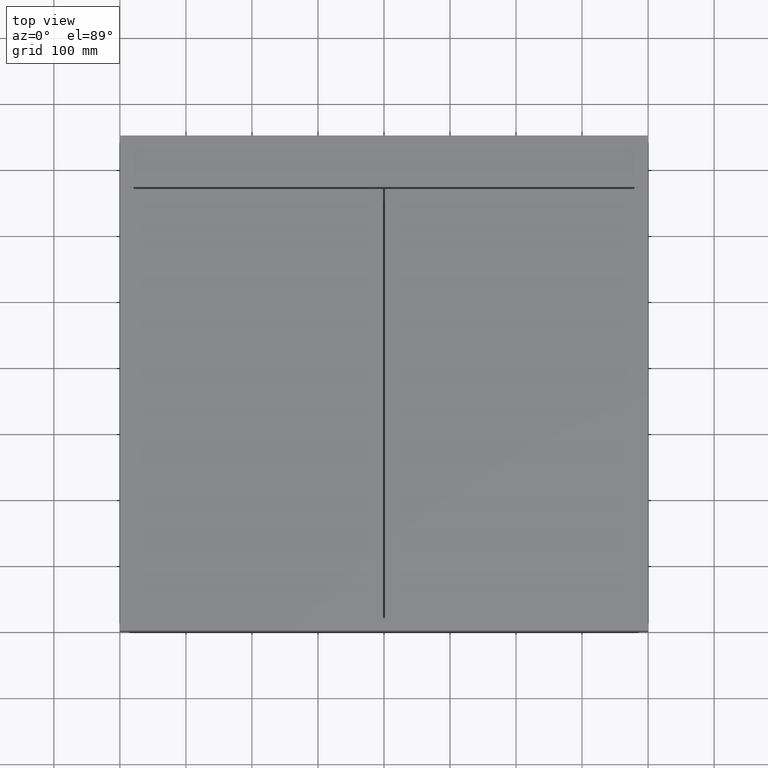
[diagram: clean part render]
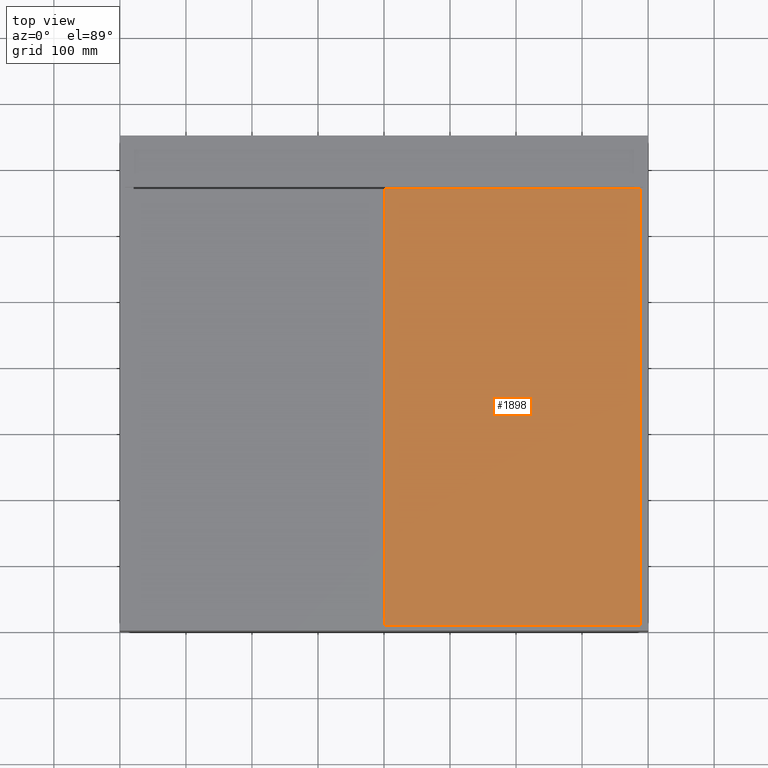
[diagram: same view with one face highlighted and labeled with its STEP entity id]
A machine part, top view. The second image highlights one B-rep face of the part: STEP entity #1898.
In plain terms, the highlighted planar face has unit normal (0, -0, 1).
Its self-contained STEP definition (entity closure, byte-faithful):
#15 = CARTESIAN_POINT ( 'NONE',  ( 401.4999999999999432, 668.9999000000001388, -7.806255641895631925E-14 ) ) ;
#406 = FACE_OUTER_BOUND ( 'NONE', #2019, .T. ) ;
#515 = ORIENTED_EDGE ( 'NONE', *, *, #2984, .T. ) ;
#970 = LINE ( 'NONE', #4577, #8707 ) ;
#1587 = EDGE_CURVE ( 'NONE', #10225, #8667, #7912, .T. ) ;
#1898 = ADVANCED_FACE ( 'NONE', ( #406 ), #4018, .T. ) ;
#2019 = EDGE_LOOP ( 'NONE', ( #5153, #2943, #6258, #515 ) ) ;
#2090 = EDGE_CURVE ( 'NONE', #7468, #10232, #4367, .T. ) ;
#2943 = ORIENTED_EDGE ( 'NONE', *, *, #5839, .T. ) ;
#2984 = EDGE_CURVE ( 'NONE', #8667, #7468, #8106, .T. ) ;
#3117 = DIRECTION ( 'NONE',  ( 1.000000000000000000, 2.047591133053501180E-36, 0.0000000000000000000 ) ) ;
#3202 = CARTESIAN_POINT ( 'NONE',  ( 789.0000000000001137, 8.000000000000007105, -7.806255641895631925E-14 ) ) ;
#3427 = DIRECTION ( 'NONE',  ( -1.679611486514833642E-16, 1.000000000000000000, 0.0000000000000000000 ) ) ;
#3620 = DIRECTION ( 'NONE',  ( -1.000000000000000000, -2.047591133053501180E-36, 0.0000000000000000000 ) ) ;
#3932 = VECTOR ( 'NONE', #3620, 1000.000000000000000 ) ;
#4018 = PLANE ( 'NONE',  #4701 ) ;
#4367 = LINE ( 'NONE', #7955, #4886 ) ;
#4577 = CARTESIAN_POINT ( 'NONE',  ( 401.5000000000000568, 8.000000000000007105, -7.806255641895631925E-14 ) ) ;
#4701 = AXIS2_PLACEMENT_3D ( 'NONE', #7601, #11221, #3117 ) ;
#4775 = CARTESIAN_POINT ( 'NONE',  ( 401.4999999999999432, 668.9999000000001388, -7.806255641895631925E-14 ) ) ;
#4886 = VECTOR ( 'NONE', #11570, 1000.000000000000000 ) ;
#5153 = ORIENTED_EDGE ( 'NONE', *, *, #2090, .T. ) ;
#5839 = EDGE_CURVE ( 'NONE', #10232, #10225, #970, .T. ) ;
#6258 = ORIENTED_EDGE ( 'NONE', *, *, #1587, .T. ) ;
#6795 = CARTESIAN_POINT ( 'NONE',  ( 401.5000000000000568, 8.000000000000007105, -7.806255641895631925E-14 ) ) ;
#7468 = VERTEX_POINT ( 'NONE', #4775 ) ;
#7601 = CARTESIAN_POINT ( 'NONE',  ( 0.0000000000000000000, 0.0000000000000000000, -7.806255641895631925E-14 ) ) ;
#7704 = VECTOR ( 'NONE', #3427, 1000.000000000000000 ) ;
#7912 = LINE ( 'NONE', #11526, #7704 ) ;
#7955 = CARTESIAN_POINT ( 'NONE',  ( 401.4999999999999432, 668.9999000000001388, -7.806255641895631925E-14 ) ) ;
#8106 = LINE ( 'NONE', #15, #3932 ) ;
#8173 = DIRECTION ( 'NONE',  ( 1.000000000000000000, 2.047591133053501180E-36, 0.0000000000000000000 ) ) ;
#8667 = VERTEX_POINT ( 'NONE', #10539 ) ;
#8707 = VECTOR ( 'NONE', #8173, 1000.000000000000000 ) ;
#10225 = VERTEX_POINT ( 'NONE', #3202 ) ;
#10232 = VERTEX_POINT ( 'NONE', #6795 ) ;
#10539 = CARTESIAN_POINT ( 'NONE',  ( 789.0000000000000000, 668.9999000000001388, -7.806255641895631925E-14 ) ) ;
#11221 = DIRECTION ( 'NONE',  ( 0.0000000000000000000, -0.0000000000000000000, 1.000000000000000000 ) ) ;
#11526 = CARTESIAN_POINT ( 'NONE',  ( 789.0000000000000000, 668.9999000000001388, -7.806255641895631925E-14 ) ) ;
#11570 = DIRECTION ( 'NONE',  ( 1.679611486514833642E-16, -1.000000000000000000, 0.0000000000000000000 ) ) ;